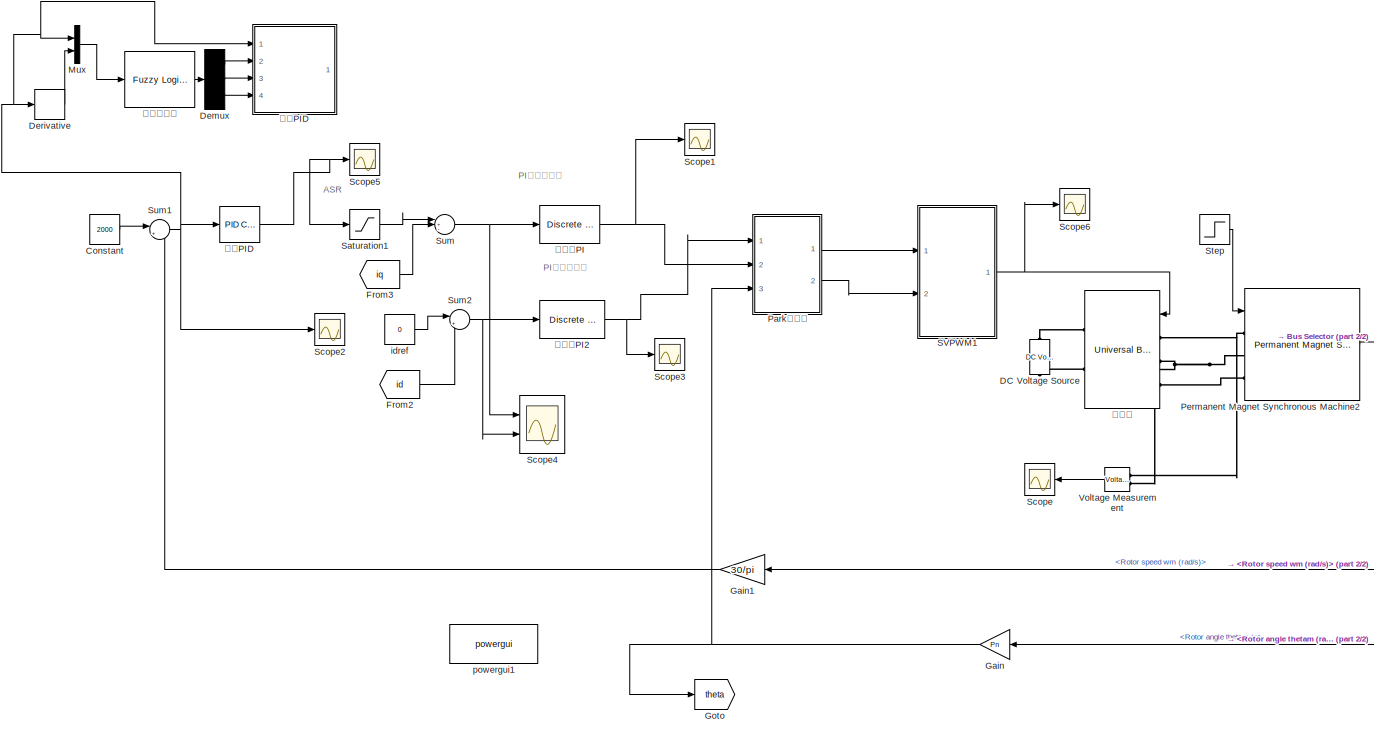
[diagram: root canvas - part 1/2, center side, full height]
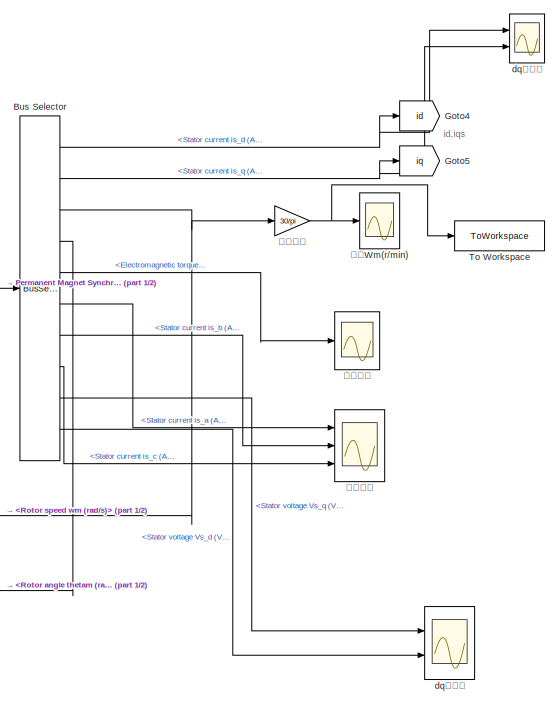
[diagram: root canvas - part 2/2, right side, full height]
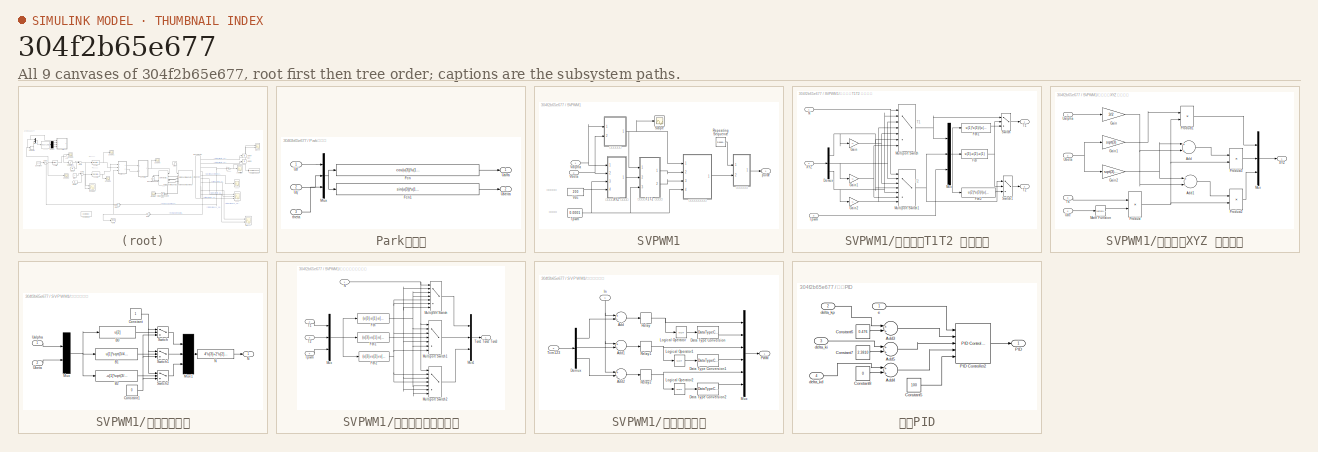
[diagram: thumbnail index - all 9 canvases of the model, root first then tree order]
MODEL slx_304f2b65e677
KIND model
CONFIG AbsTol = auto
CONFIG EnableMultiTasking = on
CONFIG FixedStep = 2e-5
CONFIG InitFcn = Ts = 2e-5\nPn = 4\n
CONFIG MaxStep = auto
CONFIG MinStep = auto
CONFIG RelTol = 1e-4
CONFIG SampleTimeConstraint = Unconstrained
CONFIG Solver = ode4
CONFIG SolverName = ode4
CONFIG StartTime = 0.0
CONFIG StopTime = 10
BLOCK [BusSelector] Bus Selector
  OutputAsBus = off
  OutputSignals = Stator current is_d (A),Stator current is_q (A),Rotor speed wm (rad/s),Rotor angle thetam (rad),Electromagnetic torque Te (N*m),Stator current is_a (A),Stator current is_b (A),Stator current is_c (A),Stator voltage Vs_q (V),Stator voltage Vs_d (V)
  Ports = [1, 10]
BLOCK [Constant] Constant
  Value = 2000
BLOCK [Reference] DC Voltage Source  REF=powerlib/Electrical
Sources/DC Voltage Source
  Ports = [0, 0, 0, 0, 0, 1, 1]
  SourceBlock = powerlib/Electrical\nSources/DC Voltage Source
  SourceProductBaseCode = PS
  SourceProductName = Simscape Electrical
  SourceType = DC Voltage Source
BLOCK [Demux] Demux
  Commented = on
  DisplayOption = bar
  Outputs = 3
  Ports = [1, 3]
BLOCK [Derivative] Derivative
  Commented = on
BLOCK [From] From2
  GotoTag = id
BLOCK [From] From3
  GotoTag = iq
BLOCK [Gain] Gain
  Gain = Pn
  OutDataTypeStr = Inherit: Inherit via internal rule
  ParamDataTypeStr = Inherit: Inherit via internal rule
  SaturateOnIntegerOverflow = off
BLOCK [Gain] Gain1
  Gain = 30/pi
  OutDataTypeStr = Inherit: Inherit via internal rule
  ParamDataTypeStr = Inherit: Inherit via internal rule
  SaturateOnIntegerOverflow = off
BLOCK [Goto] Goto
  GotoTag = theta
BLOCK [Goto] Goto4
  GotoTag = id
BLOCK [Goto] Goto5
  GotoTag = iq
BLOCK [Mux] Mux
  Commented = on
  DisplayOption = bar
  Inputs = 2
  Ports = [2, 1]
BLOCK [SubSystem] Park逆变换
  Ports = [3, 2]
  RequestExecContextInheritance = off
BLOCK [Fcn] Park逆变换/Fcn
  Expr = cos(u(3))*u(1)-sin(u(3))*u(2)
BLOCK [Fcn] Park逆变换/Fcn1
  Expr = sin(u(3))*u(1)+cos(u(3))*u(2)
BLOCK [Mux] Park逆变换/Mux
  DisplayOption = bar
  Inputs = 3
  Ports = [3, 1]
BLOCK [Outport] Park逆变换/Ualfa
  IconDisplay = Port number
BLOCK [Outport] Park逆变换/Ubeita
  IconDisplay = Port number
  Port = 2
BLOCK [Inport] Park逆变换/Ud'
  IconDisplay = Port number
BLOCK [Inport] Park逆变换/Uq'
  IconDisplay = Port number
  Port = 2
BLOCK [Inport] Park逆变换/theta
  IconDisplay = Port number
  Port = 3
BLOCK [Reference] Permanent Magnet Synchronous Machine2  REF=powerlib/Machines/Permanent Magnet
Synchronous Machine
  Ports = [1, 1, 0, 0, 0, 3]
  SourceBlock = powerlib/Machines/Permanent Magnet\nSynchronous Machine
  SourceProductBaseCode = PS
  SourceProductName = Simscape Electrical
  SourceType = Permanent Magnet Synchronous Machine
BLOCK [SubSystem] SVPWM1
  Ports = [2, 1]
  RequestExecContextInheritance = off
BLOCK [Reference] SVPWM1/Repeating Sequence  REF=simulink/Sources/Repeating
Sequence
  Ports = [0, 1]
  SourceBlock = simulink/Sources/Repeating\nSequence
  SourceProductBaseCode = SL
  SourceProductName = Simulink
  SourceType = Repeating table
BLOCK [Scope] SVPWM1/Scope
  Floating = off
  NumInputPorts = 1
  Ports = [1]
  ScopeSpecificationString = Simulink.scopes.TimeScopeBlockCfg('CurrentConfiguration', extmgr.ConfigurationSet(extmgr.Configuration('Core','General UI',true),extmgr.Configuration('Core','Source UI',true),extmgr.Configuration('Sources','WiredSimulink',true,'DataLoggingVariableName','ScopeData1'),extmgr.Configuration('Visuals','Time Domain',true,'SerializedDisplays',{struct('MinYLimReal','0.89105','MaxYLimReal','6.07711','YLabe...<+1434ch>
BLOCK [Constant] SVPWM1/Tpwm
  Value = 0.0001
BLOCK [Inport] SVPWM1/Valpha
  IconDisplay = Port number
BLOCK [Inport] SVPWM1/Vbeta
  IconDisplay = Port number
  Port = 2
BLOCK [Constant] SVPWM1/Vdc
  Value = 200
BLOCK [Outport] SVPWM1/pulse
  IconDisplay = Port number
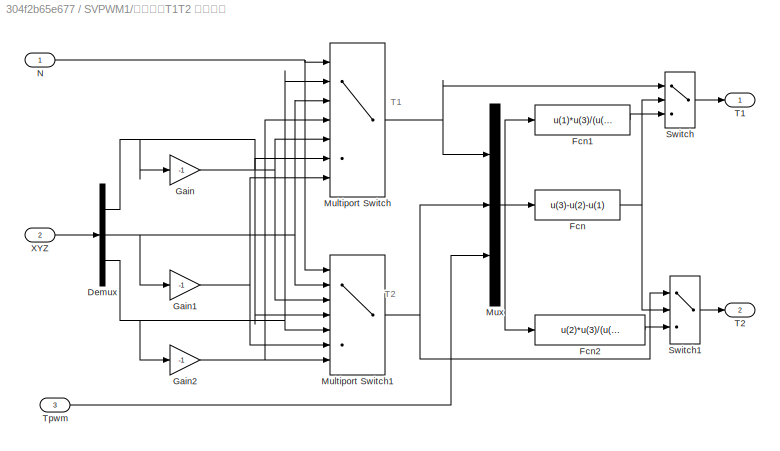
BLOCK [SubSystem] SVPWM1/不同扇区T1T2 计算模型
  Ports = [3, 2]
  RequestExecContextInheritance = off
BLOCK [Demux] SVPWM1/不同扇区T1T2 计算模型/Demux
  DisplayOption = bar
  Outputs = 3
  Ports = [1, 3]
BLOCK [Fcn] SVPWM1/不同扇区T1T2 计算模型/Fcn
  Expr = u(3)-u(2)-u(1)
BLOCK [Fcn] SVPWM1/不同扇区T1T2 计算模型/Fcn1
  Expr = u(1)*u(3)/(u(1)+u(2))
BLOCK [Fcn] SVPWM1/不同扇区T1T2 计算模型/Fcn2
  Expr = u(2)*u(3)/(u(1)+u(2))
BLOCK [Gain] SVPWM1/不同扇区T1T2 计算模型/Gain
  Gain = -1
  OutDataTypeStr = Inherit: Inherit via internal rule
  ParamDataTypeStr = Inherit: Inherit via internal rule
  SaturateOnIntegerOverflow = off
BLOCK [Gain] SVPWM1/不同扇区T1T2 计算模型/Gain1
  Gain = -1
  OutDataTypeStr = Inherit: Inherit via internal rule
  ParamDataTypeStr = Inherit: Inherit via internal rule
  SaturateOnIntegerOverflow = off
BLOCK [Gain] SVPWM1/不同扇区T1T2 计算模型/Gain2
  Gain = -1
  OutDataTypeStr = Inherit: Inherit via internal rule
  ParamDataTypeStr = Inherit: Inherit via internal rule
  SaturateOnIntegerOverflow = off
BLOCK [MultiPortSwitch] SVPWM1/不同扇区T1T2 计算模型/Multiport Switch
  DiagnosticForDefault = Warning
  InputSameDT = off
  Inputs = 6
  Ports = [7, 1]
  SaturateOnIntegerOverflow = off
BLOCK [MultiPortSwitch] SVPWM1/不同扇区T1T2 计算模型/Multiport Switch1
  DiagnosticForDefault = Warning
  InputSameDT = off
  Inputs = 6
  Ports = [7, 1]
  SaturateOnIntegerOverflow = off
BLOCK [Mux] SVPWM1/不同扇区T1T2 计算模型/Mux
  DisplayOption = bar
  Inputs = 3
  Ports = [3, 1]
BLOCK [Inport] SVPWM1/不同扇区T1T2 计算模型/N
  IconDisplay = Port number
BLOCK [Switch] SVPWM1/不同扇区T1T2 计算模型/Switch
  InputSameDT = off
  SaturateOnIntegerOverflow = off
BLOCK [Switch] SVPWM1/不同扇区T1T2 计算模型/Switch1
  Criteria = u2 > Threshold
  InputSameDT = off
  SaturateOnIntegerOverflow = off
BLOCK [Outport] SVPWM1/不同扇区T1T2 计算模型/T1
  IconDisplay = Port number
BLOCK [Outport] SVPWM1/不同扇区T1T2 计算模型/T2
  IconDisplay = Port number
  Port = 2
BLOCK [Inport] SVPWM1/不同扇区T1T2 计算模型/Tpwm
  IconDisplay = Port number
  Port = 3
BLOCK [Inport] SVPWM1/不同扇区T1T2 计算模型/XYZ
  IconDisplay = Port number
  Port = 2
BLOCK [SubSystem] SVPWM1/不同扇区XYZ 计算模型
  Ports = [4, 1]
  RequestExecContextInheritance = off
BLOCK [Sum] SVPWM1/不同扇区XYZ 计算模型/Add
  InputSameDT = off
  OutDataTypeStr = Inherit: Inherit via internal rule
  Ports = [2, 1]
  SaturateOnIntegerOverflow = off
BLOCK [Sum] SVPWM1/不同扇区XYZ 计算模型/Add1
  InputSameDT = off
  Inputs = +-
  OutDataTypeStr = Inherit: Inherit via internal rule
  Ports = [2, 1]
  SaturateOnIntegerOverflow = off
BLOCK [Gain] SVPWM1/不同扇区XYZ 计算模型/Gain
  Gain = 3/2
  OutDataTypeStr = Inherit: Inherit via internal rule
  ParamDataTypeStr = Inherit: Inherit via internal rule
  SaturateOnIntegerOverflow = off
BLOCK [Gain] SVPWM1/不同扇区XYZ 计算模型/Gain1
  Gain = sqrt(3)
  OutDataTypeStr = Inherit: Inherit via internal rule
  ParamDataTypeStr = Inherit: Inherit via internal rule
  SaturateOnIntegerOverflow = off
BLOCK [Gain] SVPWM1/不同扇区XYZ 计算模型/Gain2
  Gain = sqrt(3)/2
  OutDataTypeStr = Inherit: Inherit via internal rule
  ParamDataTypeStr = Inherit: Inherit via internal rule
  SaturateOnIntegerOverflow = off
BLOCK [Math] SVPWM1/不同扇区XYZ 计算模型/Math Function
  Operator = reciprocal
  Ports = [1, 1]
BLOCK [Mux] SVPWM1/不同扇区XYZ 计算模型/Mux
  DisplayOption = bar
  Inputs = 3
  Ports = [3, 1]
BLOCK [Product] SVPWM1/不同扇区XYZ 计算模型/Product
  InputSameDT = off
  OutDataTypeStr = Inherit: Inherit via internal rule
  Ports = [2, 1]
  SaturateOnIntegerOverflow = off
BLOCK [Product] SVPWM1/不同扇区XYZ 计算模型/Product1
  InputSameDT = off
  OutDataTypeStr = Inherit: Inherit via internal rule
  Ports = [2, 1]
  SaturateOnIntegerOverflow = off
BLOCK [Product] SVPWM1/不同扇区XYZ 计算模型/Product2
  InputSameDT = off
  OutDataTypeStr = Inherit: Inherit via internal rule
  Ports = [2, 1]
  SaturateOnIntegerOverflow = off
BLOCK [Product] SVPWM1/不同扇区XYZ 计算模型/Product3
  InputSameDT = off
  OutDataTypeStr = Inherit: Inherit via internal rule
  Ports = [2, 1]
  SaturateOnIntegerOverflow = off
BLOCK [Inport] SVPWM1/不同扇区XYZ 计算模型/Ts
  IconDisplay = Port number
  Port = 3
BLOCK [Inport] SVPWM1/不同扇区XYZ 计算模型/Ualpha
  IconDisplay = Port number
BLOCK [Inport] SVPWM1/不同扇区XYZ 计算模型/Ubeta
  IconDisplay = Port number
  Port = 2
BLOCK [Inport] SVPWM1/不同扇区XYZ 计算模型/Udc
  IconDisplay = Port number
  Port = 4
BLOCK [Outport] SVPWM1/不同扇区XYZ 计算模型/XYZ
  IconDisplay = Port number
BLOCK [SubSystem] SVPWM1/扇区计算模型
  Ports = [2, 1]
  RequestExecContextInheritance = off
BLOCK [Fcn] SVPWM1/扇区计算模型/B0
  Expr = u[2]
BLOCK [Fcn] SVPWM1/扇区计算模型/B1
  Expr = u[1]*sqrt(3/4)-0.5*u[2]
BLOCK [Fcn] SVPWM1/扇区计算模型/B2
  Expr = -u[1]*sqrt(3/4)-u[2]*0.5
BLOCK [Constant] SVPWM1/扇区计算模型/Constant
BLOCK [Constant] SVPWM1/扇区计算模型/Constant1
  Value = 0
BLOCK [Mux] SVPWM1/扇区计算模型/Mux
  Inputs = 2
  Ports = [2, 1]
BLOCK [Mux] SVPWM1/扇区计算模型/Mux1
  Inputs = 3
  Ports = [3, 1]
BLOCK [Fcn] SVPWM1/扇区计算模型/N
  Expr = 4*u[3]+2*u[2]+u[1]
BLOCK [Outport] SVPWM1/扇区计算模型/N 
  IconDisplay = Port number
BLOCK [Switch] SVPWM1/扇区计算模型/Switch
  InputSameDT = off
  SaturateOnIntegerOverflow = off
BLOCK [Switch] SVPWM1/扇区计算模型/Switch1
  InputSameDT = off
  SaturateOnIntegerOverflow = off
BLOCK [Switch] SVPWM1/扇区计算模型/Switch2
  InputSameDT = off
  SaturateOnIntegerOverflow = off
BLOCK [Inport] SVPWM1/扇区计算模型/Ualpha
  IconDisplay = Port number
BLOCK [Inport] SVPWM1/扇区计算模型/Ubeta
  IconDisplay = Port number
  Port = 2
BLOCK [SubSystem] SVPWM1/空间电压矢量切换点
  Ports = [4, 1]
  RequestExecContextInheritance = off
BLOCK [Fcn] SVPWM1/空间电压矢量切换点/Fcn
  Expr = (u[3]-u[1]-u[2])/4
BLOCK [Fcn] SVPWM1/空间电压矢量切换点/Fcn1
  Expr = (u[3]+u[1]-u[2])/4
BLOCK [Fcn] SVPWM1/空间电压矢量切换点/Fcn2
  Expr = (u[3]+u[2]+u[1])/4
BLOCK [MultiPortSwitch] SVPWM1/空间电压矢量切换点/Multiport Switch
  DiagnosticForDefault = Warning
  InputSameDT = off
  Inputs = 6
  Ports = [7, 1]
  SaturateOnIntegerOverflow = off
BLOCK [MultiPortSwitch] SVPWM1/空间电压矢量切换点/Multiport Switch1
  DiagnosticForDefault = Warning
  InputSameDT = off
  Inputs = 6
  Ports = [7, 1]
  SaturateOnIntegerOverflow = off
BLOCK [MultiPortSwitch] SVPWM1/空间电压矢量切换点/Multiport Switch2
  DiagnosticForDefault = Warning
  InputSameDT = off
  Inputs = 6
  Ports = [7, 1]
  SaturateOnIntegerOverflow = off
BLOCK [Mux] SVPWM1/空间电压矢量切换点/Mux
  DisplayOption = bar
  Inputs = 3
  Ports = [3, 1]
BLOCK [Mux] SVPWM1/空间电压矢量切换点/Mux1
  DisplayOption = bar
  Inputs = 3
  Ports = [3, 1]
BLOCK [Inport] SVPWM1/空间电压矢量切换点/N
  IconDisplay = Port number
BLOCK [Inport] SVPWM1/空间电压矢量切换点/T1
  IconDisplay = Port number
  Port = 2
BLOCK [Inport] SVPWM1/空间电压矢量切换点/T2
  IconDisplay = Port number
  Port = 3
BLOCK [Outport] SVPWM1/空间电压矢量切换点/Tcm1 Tcm2 Tcm3
  IconDisplay = Port number
BLOCK [Inport] SVPWM1/空间电压矢量切换点/Tpwm
  IconDisplay = Port number
  Port = 4
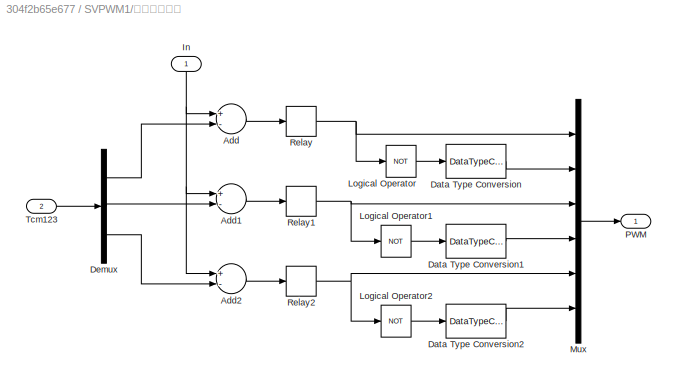
BLOCK [SubSystem] SVPWM1/脉冲输出模型
  Ports = [2, 1]
  RequestExecContextInheritance = off
BLOCK [Sum] SVPWM1/脉冲输出模型/Add
  InputSameDT = off
  Inputs = +-
  OutDataTypeStr = Inherit: Inherit via internal rule
  Ports = [2, 1]
  SaturateOnIntegerOverflow = off
BLOCK [Sum] SVPWM1/脉冲输出模型/Add1
  InputSameDT = off
  Inputs = +-
  OutDataTypeStr = Inherit: Inherit via internal rule
  Ports = [2, 1]
  SaturateOnIntegerOverflow = off
BLOCK [Sum] SVPWM1/脉冲输出模型/Add2
  InputSameDT = off
  Inputs = +-
  OutDataTypeStr = Inherit: Inherit via internal rule
  Ports = [2, 1]
  SaturateOnIntegerOverflow = off
BLOCK [DataTypeConversion] SVPWM1/脉冲输出模型/Data Type Conversion
  OutDataTypeStr = double
  RndMeth = Floor
  SaturateOnIntegerOverflow = off
BLOCK [DataTypeConversion] SVPWM1/脉冲输出模型/Data Type Conversion1
  OutDataTypeStr = double
  RndMeth = Floor
  SaturateOnIntegerOverflow = off
BLOCK [DataTypeConversion] SVPWM1/脉冲输出模型/Data Type Conversion2
  OutDataTypeStr = double
  RndMeth = Floor
  SaturateOnIntegerOverflow = off
BLOCK [Demux] SVPWM1/脉冲输出模型/Demux
  DisplayOption = bar
  Outputs = 3
  Ports = [1, 3]
BLOCK [Inport] SVPWM1/脉冲输出模型/In
  IconDisplay = Port number
BLOCK [Logic] SVPWM1/脉冲输出模型/Logical Operator
  AllPortsSameDT = off
  Operator = NOT
  OutDataTypeStr = boolean
  Ports = [1, 1]
BLOCK [Logic] SVPWM1/脉冲输出模型/Logical Operator1
  AllPortsSameDT = off
  Operator = NOT
  OutDataTypeStr = boolean
  Ports = [1, 1]
BLOCK [Logic] SVPWM1/脉冲输出模型/Logical Operator2
  AllPortsSameDT = off
  Operator = NOT
  OutDataTypeStr = boolean
  Ports = [1, 1]
BLOCK [Mux] SVPWM1/脉冲输出模型/Mux
  DisplayOption = bar
  Inputs = 6
  Ports = [6, 1]
BLOCK [Outport] SVPWM1/脉冲输出模型/PWM
  IconDisplay = Port number
BLOCK [Relay] SVPWM1/脉冲输出模型/Relay
  OffSwitchValue = -eps
BLOCK [Relay] SVPWM1/脉冲输出模型/Relay1
  OffSwitchValue = -eps
BLOCK [Relay] SVPWM1/脉冲输出模型/Relay2
  OffSwitchValue = -eps
BLOCK [Inport] SVPWM1/脉冲输出模型/Tcm123
  IconDisplay = Port number
  Port = 2
BLOCK [Saturate] Saturation1
  InputPortMap = u0
  LowerLimit = -50
  Ports = [1, 1]
  UpperLimit = 50
BLOCK [Scope] Scope
  Floating = off
  NumInputPorts = 1
  Ports = [1]
  ScopeSpecificationString = Simulink.scopes.TimeScopeBlockCfg('CurrentConfiguration', extmgr.ConfigurationSet(extmgr.Configuration('Core','General UI',true),extmgr.Configuration('Core','Source UI',true),extmgr.Configuration('Sources','WiredSimulink',true,'DataLoggingSaveFormat','Array','DataLoggingDecimation','1','DataLoggingDecimateData',true),extmgr.Configuration('Visuals','Time Domain',true,'SerializedDisplays',{struct('M...<+1513ch>
BLOCK [Scope] Scope1
  Floating = off
  NumInputPorts = 1
  Ports = [1]
  ScopeSpecificationString = Simulink.scopes.TimeScopeBlockCfg('CurrentConfiguration', extmgr.ConfigurationSet(extmgr.Configuration('Core','General UI',true),extmgr.Configuration('Core','Source UI',true),extmgr.Configuration('Sources','WiredSimulink',true,'DataLoggingVariableName','ScopeData1'),extmgr.Configuration('Visuals','Time Domain',true,'SerializedDisplays',{struct('MinYLimReal','10000.00000','MaxYLimReal','30000.00000...<+1447ch>
BLOCK [Scope] Scope2
  Floating = off
  NumInputPorts = 1
  Ports = [1]
  ScopeSpecificationString = Simulink.scopes.TimeScopeBlockCfg('CurrentConfiguration', extmgr.ConfigurationSet(extmgr.Configuration('Core','General UI',true),extmgr.Configuration('Core','Source UI',true),extmgr.Configuration('Sources','WiredSimulink',true,'DataLoggingVariableName','ScopeData1'),extmgr.Configuration('Visuals','Time Domain',true,'SerializedDisplays',{struct('MinYLimReal','-231.70022','MaxYLimReal','1136.85558',...<+1381ch>
BLOCK [Scope] Scope3
  Floating = off
  NumInputPorts = 1
  Ports = [1]
  ScopeSpecificationString = Simulink.scopes.TimeScopeBlockCfg('CurrentConfiguration', extmgr.ConfigurationSet(extmgr.Configuration('Core','General UI',true),extmgr.Configuration('Core','Source UI',true),extmgr.Configuration('Sources','WiredSimulink',true,'DataLoggingVariableName','ScopeData2'),extmgr.Configuration('Visuals','Time Domain',true),extmgr.Configuration('Tools','Plot Navigation',true),extmgr.Configuration('Tools',...<+40ch>
BLOCK [Scope] Scope4
  Floating = off
  NumInputPorts = 2
  Ports = [2]
  ScopeSpecificationString = Simulink.scopes.TimeScopeBlockCfg('CurrentConfiguration', extmgr.ConfigurationSet(extmgr.Configuration('Core','General UI',true,'FigureColor',[1 1 1]),extmgr.Configuration('Core','Source UI',true),extmgr.Configuration('Sources','WiredSimulink',true,'DataLoggingVariableName','ScopeData4'),extmgr.Configuration('Visuals','Time Domain',true,'SerializedDisplays',{struct('MinYLimReal','-10.08265','MaxYL...<+2230ch>
BLOCK [Scope] Scope5
  Floating = off
  NumInputPorts = 1
  Ports = [1]
  ScopeSpecificationString = Simulink.scopes.TimeScopeBlockCfg('CurrentConfiguration', extmgr.ConfigurationSet(extmgr.Configuration('Core','General UI',true),extmgr.Configuration('Core','Source UI',true),extmgr.Configuration('Sources','WiredSimulink',true,'DataLoggingVariableName','ScopeData3'),extmgr.Configuration('Visuals','Time Domain',true,'SerializedDisplays',{struct('MinYLimReal','-789.73279','MaxYLimReal','17256.66639'...<+1386ch>
BLOCK [Scope] Scope6
  Floating = off
  NumInputPorts = 1
  Ports = [1]
  ScopeSpecificationString = Simulink.scopes.TimeScopeBlockCfg('CurrentConfiguration', extmgr.ConfigurationSet(extmgr.Configuration('Core','General UI',true),extmgr.Configuration('Core','Source UI',true),extmgr.Configuration('Sources','WiredSimulink',true,'DataLoggingVariableName','ScopeData4'),extmgr.Configuration('Visuals','Time Domain',true,'SerializedDisplays',{struct('MinYLimReal','-0.125','MaxYLimReal','1.125','YLabelRe...<+1484ch>
BLOCK [Step] Step
  After = 10
  Before = 5
  SampleTime = 0
  Time = 2
BLOCK [Sum] Sum
  IconShape = round
  InputSameDT = off
  Inputs = |+-+
  OutDataTypeStr = Inherit: Inherit via internal rule
  Ports = [3, 1]
  SaturateOnIntegerOverflow = off
BLOCK [Sum] Sum1
  IconShape = round
  InputSameDT = off
  Inputs = |+-
  OutDataTypeStr = Inherit: Inherit via internal rule
  Ports = [2, 1]
  SaturateOnIntegerOverflow = off
BLOCK [Sum] Sum2
  IconShape = round
  InputSameDT = off
  Inputs = |+-
  OutDataTypeStr = Inherit: Inherit via internal rule
  Ports = [2, 1]
  SaturateOnIntegerOverflow = off
BLOCK [ToWorkspace] To Workspace
  FixptAsFi = on
  MaxDataPoints = inf
  Ports = [1]
  SampleTime = -1
  SaveFormat = Timeseries
  VariableName = Wm2
BLOCK [Reference] Voltage Measurement  REF=powerlib/Measurements/Voltage Measurement
  Ports = [0, 1, 0, 0, 0, 2]
  SourceBlock = powerlib/Measurements/Voltage Measurement
  SourceProductBaseCode = PS
  SourceProductName = Simscape Electrical
  SourceType = Voltage Measurement
  UserDataPersistent = on
BLOCK [Scope] dq轴电压
  Floating = off
  NumInputPorts = 2
  Ports = [2]
  ScopeSpecificationString = Simulink.scopes.TimeScopeBlockCfg('CurrentConfiguration', extmgr.ConfigurationSet(extmgr.Configuration('Core','General UI',true,'FigureColor',[1 1 1]),extmgr.Configuration('Core','Source UI',true),extmgr.Configuration('Sources','WiredSimulink',true,'DataLoggingVariableName','ScopeData1'),extmgr.Configuration('Visuals','Time Domain',true,'SerializedDisplays',{struct('MinYLimReal','-165.49634','MaxY...<+2213ch>
BLOCK [Scope] dq轴电流
  Floating = off
  NumInputPorts = 2
  Ports = [2]
  ScopeSpecificationString = Simulink.scopes.TimeScopeBlockCfg('CurrentConfiguration', extmgr.ConfigurationSet(extmgr.Configuration('Core','General UI',true),extmgr.Configuration('Core','Source UI',true),extmgr.Configuration('Sources','WiredSimulink',true,'DataLoggingVariableName','ScopeData4'),extmgr.Configuration('Visuals','Time Domain',true,'SerializedDisplays',{struct('MinYLimReal','-52.34756','MaxYLimReal','70.70365','YL...<+1492ch>
BLOCK [Constant] idref
  Value = 0
BLOCK [Reference] powergui1  REF=powerlib/powergui
  Ports = []
  SourceBlock = powerlib/powergui
  SourceProductBaseCode = PS
  SourceProductName = Simscape Electrical
  SourceType = PSB option menu block
BLOCK [Scope] 三相电流
  Floating = off
  NumInputPorts = 3
  Ports = [3]
  ScopeSpecificationString = Simulink.scopes.TimeScopeBlockCfg('CurrentConfiguration', extmgr.ConfigurationSet(extmgr.Configuration('Core','General UI',true),extmgr.Configuration('Core','Source UI',true),extmgr.Configuration('Sources','WiredSimulink',true,'DataLoggingVariableName','ScopeData3'),extmgr.Configuration('Visuals','Time Domain',true,'SerializedDisplays',{struct('MinYLimReal','-1.57498','MaxYLimReal','1.58449','YLab...<+1495ch>
BLOCK [SubSystem] 模糊PID
  Commented = on
  Ports = [4, 1]
  RequestExecContextInheritance = off
BLOCK [Sum] 模糊PID/Add3
  InputSameDT = off
  OutDataTypeStr = Inherit: Inherit via internal rule
  Ports = [2, 1]
  SaturateOnIntegerOverflow = off
BLOCK [Sum] 模糊PID/Add4
  InputSameDT = off
  OutDataTypeStr = Inherit: Inherit via internal rule
  Ports = [2, 1]
  SaturateOnIntegerOverflow = off
BLOCK [Sum] 模糊PID/Add5
  InputSameDT = off
  OutDataTypeStr = Inherit: Inherit via internal rule
  Ports = [2, 1]
  SaturateOnIntegerOverflow = off
BLOCK [Constant] 模糊PID/Constant5
  Value = 100
BLOCK [Constant] 模糊PID/Constant6
  Value = 0.476
BLOCK [Constant] 模糊PID/Constant7
  Value = 2.3810
BLOCK [Constant] 模糊PID/Constant8
  Value = 0
BLOCK [Outport] 模糊PID/PID
  IconDisplay = Port number
BLOCK [Reference] 模糊PID/PID Controller2  REF=simulink/Continuous/PID Controller
  Ports = [5, 1]
  SourceBlock = simulink/Continuous/PID Controller
  SourceProductBaseCode = SL
  SourceProductName = Simulink
  SourceType = PID 1dof
BLOCK [Inport] 模糊PID/delta_kd
  IconDisplay = Port number
  Port = 4
BLOCK [Inport] 模糊PID/delta_ki
  IconDisplay = Port number
  Port = 3
BLOCK [Inport] 模糊PID/delta_kp
  IconDisplay = Port number
  Port = 2
BLOCK [Inport] 模糊PID/e
  IconDisplay = Port number
BLOCK [Reference] 模糊控制器  REF=fuzblock/Fuzzy Logic   (lib defined in mdl_858b3b3e7478)
Controller
  Commented = on
  Ports = [1, 1]
  SourceBlock = fuzblock/Fuzzy Logic \nController
  SourceProductBaseCode = FL
  SourceProductName = Fuzzy Logic Toolbox
  SourceType = Fuzzy Inference System
BLOCK [Gain] 电机转速
  Gain = 30/pi
  OutDataTypeStr = Inherit: Inherit via internal rule
  ParamDataTypeStr = Inherit: Inherit via internal rule
  SaturateOnIntegerOverflow = off
BLOCK [Reference] 电流环PI  REF=powerlib_extras/Discrete 
Control Blocks/Discrete
PI Controller
  Ports = [1, 1]
  SourceBlock = powerlib_extras/Discrete \nControl Blocks/Discrete\nPI Controller
  SourceProductBaseCode = PS
  SourceProductName = Simscape Electrical
  SourceType = Discrete PI Controller
BLOCK [Reference] 电流环PI2  REF=powerlib_extras/Discrete 
Control Blocks/Discrete
PI Controller
  Ports = [1, 1]
  SourceBlock = powerlib_extras/Discrete \nControl Blocks/Discrete\nPI Controller
  SourceProductBaseCode = PS
  SourceProductName = Simscape Electrical
  SourceType = Discrete PI Controller
BLOCK [Scope] 电磁转矩
  Floating = off
  NumInputPorts = 1
  Ports = [1]
  ScopeSpecificationString = Simulink.scopes.TimeScopeBlockCfg('CurrentConfiguration', extmgr.ConfigurationSet(extmgr.Configuration('Core','General UI',true,'FigureColor',[1 1 1]),extmgr.Configuration('Core','Source UI',true),extmgr.Configuration('Sources','WiredSimulink',true,'DataLoggingVariableName','ScopeData5'),extmgr.Configuration('Visuals','Time Domain',true,'SerializedDisplays',{struct('MinYLimReal','-1797693134862315...<+4195ch>
BLOCK [Reference] 转速PID  REF=simulink/Continuous/PID Controller
  Ports = [1, 1]
  SourceBlock = simulink/Continuous/PID Controller
  SourceProductBaseCode = SL
  SourceProductName = Simulink
  SourceType = PID 1dof
BLOCK [Scope] 转速Wm(r//min)
  Floating = off
  NumInputPorts = 1
  Ports = [1]
  ScopeSpecificationString = Simulink.scopes.TimeScopeBlockCfg('CurrentConfiguration', extmgr.ConfigurationSet(extmgr.Configuration('Core','General UI',true,'FigureColor',[1 1 1]),extmgr.Configuration('Core','Source UI',true),extmgr.Configuration('Sources','WiredSimulink',true,'DataLoggingVariableName','ScopeData1'),extmgr.Configuration('Visuals','Time Domain',true,'SerializedDisplays',{struct('MinYLimReal','-254.05843','MaxY...<+1721ch>
BLOCK [Reference] 逆变器  REF=powerlib/Power
Electronics/Universal Bridge
  Ports = [1, 0, 0, 0, 0, 3, 2]
  SourceBlock = powerlib/Power\nElectronics/Universal Bridge
  SourceProductBaseCode = PS
  SourceProductName = Simscape Electrical
  SourceType = Universal Bridge
ANNOTATION (root): PI电流调节器
ANNOTATION (root): id,iqs
ANNOTATION (root): ASR
ANNOTATION SVPWM1: 直流侧电压
ANNOTATION SVPWM1: 采样时间
ANNOTATION SVPWM1/不同扇区T1T2 计算模型: T1
ANNOTATION SVPWM1/不同扇区T1T2 计算模型: T2
NET Bus Selector:1 -> Goto4:1, dq轴电流:1
LINE Bus Selector:10 -> dq轴电压:2
NET Bus Selector:2 -> Goto5:1, dq轴电流:2
NET Bus Selector:3 -> Gain1:1, 电机转速:1
LINE Bus Selector:4 -> Gain:1
LINE Bus Selector:5 -> 电磁转矩:1
LINE Bus Selector:6 -> 三相电流:1
LINE Bus Selector:7 -> 三相电流:2
LINE Bus Selector:8 -> 三相电流:3
LINE Bus Selector:9 -> dq轴电压:1
LINE Constant:1 -> Sum1:1
LINE Demux:1 -> 模糊PID:2
LINE Demux:2 -> 模糊PID:3
LINE Demux:3 -> 模糊PID:4
LINE Derivative:1 -> Mux:2
LINE From2:1 -> Sum2:2
LINE From3:1 -> Sum:2
LINE Gain1:1 -> Sum1:2
NET Gain:1 -> Goto:1, Park逆变换:3
LINE Mux:1 -> 模糊控制器:1
LINE Park逆变换/Fcn1:1 -> Park逆变换/Ubeita:1
LINE Park逆变换/Fcn:1 -> Park逆变换/Ualfa:1
NET Park逆变换/Mux:1 -> Park逆变换/Fcn1:1, Park逆变换/Fcn:1
LINE Park逆变换/Ud':1 -> Park逆变换/Mux:1
LINE Park逆变换/Uq':1 -> Park逆变换/Mux:2
LINE Park逆变换/theta:1 -> Park逆变换/Mux:3
LINE Park逆变换:1 -> SVPWM1:1
LINE Park逆变换:2 -> SVPWM1:2
LINE Permanent Magnet Synchronous Machine2:1 -> Bus Selector:1
LINE SVPWM1/Repeating Sequence:1 -> SVPWM1/脉冲输出模型:1
NET SVPWM1/Tpwm:1 -> SVPWM1/不同扇区T1T2 计算模型:3, SVPWM1/不同扇区XYZ 计算模型:3, SVPWM1/空间电压矢量切换点:4
NET SVPWM1/Valpha:1 -> SVPWM1/不同扇区XYZ 计算模型:1, SVPWM1/扇区计算模型:1
NET SVPWM1/Vbeta:1 -> SVPWM1/不同扇区XYZ 计算模型:2, SVPWM1/扇区计算模型:2
LINE SVPWM1/Vdc:1 -> SVPWM1/不同扇区XYZ 计算模型:4
NET SVPWM1/不同扇区T1T2 计算模型/Demux:1 -> SVPWM1/不同扇区T1T2 计算模型/Gain:1, SVPWM1/不同扇区T1T2 计算模型/Multiport Switch1:4, SVPWM1/不同扇区T1T2 计算模型/Multiport Switch:6
NET SVPWM1/不同扇区T1T2 计算模型/Demux:2 -> SVPWM1/不同扇区T1T2 计算模型/Gain1:1, SVPWM1/不同扇区T1T2 计算模型/Multiport Switch1:2, SVPWM1/不同扇区T1T2 计算模型/Multiport Switch:3
NET SVPWM1/不同扇区T1T2 计算模型/Demux:3 -> SVPWM1/不同扇区T1T2 计算模型/Gain2:1, SVPWM1/不同扇区T1T2 计算模型/Multiport Switch1:5, SVPWM1/不同扇区T1T2 计算模型/Multiport Switch:2
LINE SVPWM1/不同扇区T1T2 计算模型/Fcn1:1 -> SVPWM1/不同扇区T1T2 计算模型/Switch:3
LINE SVPWM1/不同扇区T1T2 计算模型/Fcn2:1 -> SVPWM1/不同扇区T1T2 计算模型/Switch1:3
NET SVPWM1/不同扇区T1T2 计算模型/Fcn:1 -> SVPWM1/不同扇区T1T2 计算模型/Switch1:2, SVPWM1/不同扇区T1T2 计算模型/Switch:2
NET SVPWM1/不同扇区T1T2 计算模型/Gain1:1 -> SVPWM1/不同扇区T1T2 计算模型/Multiport Switch1:6, SVPWM1/不同扇区T1T2 计算模型/Multiport Switch:7
NET SVPWM1/不同扇区T1T2 计算模型/Gain2:1 -> SVPWM1/不同扇区T1T2 计算模型/Multiport Switch1:7, SVPWM1/不同扇区T1T2 计算模型/Multiport Switch:4
NET SVPWM1/不同扇区T1T2 计算模型/Gain:1 -> SVPWM1/不同扇区T1T2 计算模型/Multiport Switch1:3, SVPWM1/不同扇区T1T2 计算模型/Multiport Switch:5
NET SVPWM1/不同扇区T1T2 计算模型/Multiport Switch1:1 -> SVPWM1/不同扇区T1T2 计算模型/Mux:2, SVPWM1/不同扇区T1T2 计算模型/Switch1:1
NET SVPWM1/不同扇区T1T2 计算模型/Multiport Switch:1 -> SVPWM1/不同扇区T1T2 计算模型/Mux:1, SVPWM1/不同扇区T1T2 计算模型/Switch:1
NET SVPWM1/不同扇区T1T2 计算模型/Mux:1 -> SVPWM1/不同扇区T1T2 计算模型/Fcn1:1, SVPWM1/不同扇区T1T2 计算模型/Fcn2:1, SVPWM1/不同扇区T1T2 计算模型/Fcn:1
NET SVPWM1/不同扇区T1T2 计算模型/N:1 -> SVPWM1/不同扇区T1T2 计算模型/Multiport Switch1:1, SVPWM1/不同扇区T1T2 计算模型/Multiport Switch:1
LINE SVPWM1/不同扇区T1T2 计算模型/Switch1:1 -> SVPWM1/不同扇区T1T2 计算模型/T2:1
LINE SVPWM1/不同扇区T1T2 计算模型/Switch:1 -> SVPWM1/不同扇区T1T2 计算模型/T1:1
LINE SVPWM1/不同扇区T1T2 计算模型/Tpwm:1 -> SVPWM1/不同扇区T1T2 计算模型/Mux:3
LINE SVPWM1/不同扇区T1T2 计算模型/XYZ:1 -> SVPWM1/不同扇区T1T2 计算模型/Demux:1
LINE SVPWM1/不同扇区T1T2 计算模型:1 -> SVPWM1/空间电压矢量切换点:2
LINE SVPWM1/不同扇区T1T2 计算模型:2 -> SVPWM1/空间电压矢量切换点:3
LINE SVPWM1/不同扇区XYZ 计算模型/Add1:1 -> SVPWM1/不同扇区XYZ 计算模型/Product2:1
LINE SVPWM1/不同扇区XYZ 计算模型/Add:1 -> SVPWM1/不同扇区XYZ 计算模型/Product3:1
LINE SVPWM1/不同扇区XYZ 计算模型/Gain1:1 -> SVPWM1/不同扇区XYZ 计算模型/Product1:1
NET SVPWM1/不同扇区XYZ 计算模型/Gain2:1 -> SVPWM1/不同扇区XYZ 计算模型/Add1:1, SVPWM1/不同扇区XYZ 计算模型/Add:1
NET SVPWM1/不同扇区XYZ 计算模型/Gain:1 -> SVPWM1/不同扇区XYZ 计算模型/Add1:2, SVPWM1/不同扇区XYZ 计算模型/Add:2
LINE SVPWM1/不同扇区XYZ 计算模型/Math Function:1 -> SVPWM1/不同扇区XYZ 计算模型/Product:2
LINE SVPWM1/不同扇区XYZ 计算模型/Mux:1 -> SVPWM1/不同扇区XYZ 计算模型/XYZ:1
LINE SVPWM1/不同扇区XYZ 计算模型/Product1:1 -> SVPWM1/不同扇区XYZ 计算模型/Mux:1
LINE SVPWM1/不同扇区XYZ 计算模型/Product2:1 -> SVPWM1/不同扇区XYZ 计算模型/Mux:3
LINE SVPWM1/不同扇区XYZ 计算模型/Product3:1 -> SVPWM1/不同扇区XYZ 计算模型/Mux:2
NET SVPWM1/不同扇区XYZ 计算模型/Product:1 -> SVPWM1/不同扇区XYZ 计算模型/Product1:2, SVPWM1/不同扇区XYZ 计算模型/Product2:2, SVPWM1/不同扇区XYZ 计算模型/Product3:2
LINE SVPWM1/不同扇区XYZ 计算模型/Ts:1 -> SVPWM1/不同扇区XYZ 计算模型/Product:1
LINE SVPWM1/不同扇区XYZ 计算模型/Ualpha:1 -> SVPWM1/不同扇区XYZ 计算模型/Gain:1
NET SVPWM1/不同扇区XYZ 计算模型/Ubeta:1 -> SVPWM1/不同扇区XYZ 计算模型/Gain1:1, SVPWM1/不同扇区XYZ 计算模型/Gain2:1
LINE SVPWM1/不同扇区XYZ 计算模型/Udc:1 -> SVPWM1/不同扇区XYZ 计算模型/Math Function:1
LINE SVPWM1/不同扇区XYZ 计算模型:1 -> SVPWM1/不同扇区T1T2 计算模型:2
LINE SVPWM1/扇区计算模型/B0:1 -> SVPWM1/扇区计算模型/Switch:2
LINE SVPWM1/扇区计算模型/B1:1 -> SVPWM1/扇区计算模型/Switch1:2
LINE SVPWM1/扇区计算模型/B2:1 -> SVPWM1/扇区计算模型/Switch2:2
NET SVPWM1/扇区计算模型/Constant1:1 -> SVPWM1/扇区计算模型/Switch1:3, SVPWM1/扇区计算模型/Switch2:3, SVPWM1/扇区计算模型/Switch:3
NET SVPWM1/扇区计算模型/Constant:1 -> SVPWM1/扇区计算模型/Switch1:1, SVPWM1/扇区计算模型/Switch2:1, SVPWM1/扇区计算模型/Switch:1
LINE SVPWM1/扇区计算模型/Mux1:1 -> SVPWM1/扇区计算模型/N:1
NET SVPWM1/扇区计算模型/Mux:1 -> SVPWM1/扇区计算模型/B0:1, SVPWM1/扇区计算模型/B1:1, SVPWM1/扇区计算模型/B2:1
LINE SVPWM1/扇区计算模型/N:1 -> SVPWM1/扇区计算模型/N :1
LINE SVPWM1/扇区计算模型/Switch1:1 -> SVPWM1/扇区计算模型/Mux1:2
LINE SVPWM1/扇区计算模型/Switch2:1 -> SVPWM1/扇区计算模型/Mux1:3
LINE SVPWM1/扇区计算模型/Switch:1 -> SVPWM1/扇区计算模型/Mux1:1
LINE SVPWM1/扇区计算模型/Ualpha:1 -> SVPWM1/扇区计算模型/Mux:1
LINE SVPWM1/扇区计算模型/Ubeta:1 -> SVPWM1/扇区计算模型/Mux:2
NET SVPWM1/扇区计算模型:1 -> SVPWM1/Scope:1, SVPWM1/不同扇区T1T2 计算模型:1, SVPWM1/空间电压矢量切换点:1
NET SVPWM1/空间电压矢量切换点/Fcn1:1 -> SVPWM1/空间电压矢量切换点/Multiport Switch1:4, SVPWM1/空间电压矢量切换点/Multiport Switch1:5, SVPWM1/空间电压矢量切换点/Multiport Switch2:3, SVPWM1/空间电压矢量切换点/Multiport Switch2:6, SVPWM1/空间电压矢量切换点/Multiport Switch:2, SVPWM1/空间电压矢量切换点/Multiport Switch:7
NET SVPWM1/空间电压矢量切换点/Fcn2:1 -> SVPWM1/空间电压矢量切换点/Multiport Switch1:3, SVPWM1/空间电压矢量切换点/Multiport Switch1:7, SVPWM1/空间电压矢量切换点/Multiport Switch2:2, SVPWM1/空间电压矢量切换点/Multiport Switch2:4, SVPWM1/空间电压矢量切换点/Multiport Switch:5, SVPWM1/空间电压矢量切换点/Multiport Switch:6
NET SVPWM1/空间电压矢量切换点/Fcn:1 -> SVPWM1/空间电压矢量切换点/Multiport Switch1:2, SVPWM1/空间电压矢量切换点/Multiport Switch1:6, SVPWM1/空间电压矢量切换点/Multiport Switch2:5, SVPWM1/空间电压矢量切换点/Multiport Switch2:7, SVPWM1/空间电压矢量切换点/Multiport Switch:3, SVPWM1/空间电压矢量切换点/Multiport Switch:4
LINE SVPWM1/空间电压矢量切换点/Multiport Switch1:1 -> SVPWM1/空间电压矢量切换点/Mux1:2
LINE SVPWM1/空间电压矢量切换点/Multiport Switch2:1 -> SVPWM1/空间电压矢量切换点/Mux1:3
LINE SVPWM1/空间电压矢量切换点/Multiport Switch:1 -> SVPWM1/空间电压矢量切换点/Mux1:1
LINE SVPWM1/空间电压矢量切换点/Mux1:1 -> SVPWM1/空间电压矢量切换点/Tcm1 Tcm2 Tcm3:1
NET SVPWM1/空间电压矢量切换点/Mux:1 -> SVPWM1/空间电压矢量切换点/Fcn1:1, SVPWM1/空间电压矢量切换点/Fcn2:1, SVPWM1/空间电压矢量切换点/Fcn:1
NET SVPWM1/空间电压矢量切换点/N:1 -> SVPWM1/空间电压矢量切换点/Multiport Switch1:1, SVPWM1/空间电压矢量切换点/Multiport Switch2:1, SVPWM1/空间电压矢量切换点/Multiport Switch:1
LINE SVPWM1/空间电压矢量切换点/T1:1 -> SVPWM1/空间电压矢量切换点/Mux:1
LINE SVPWM1/空间电压矢量切换点/T2:1 -> SVPWM1/空间电压矢量切换点/Mux:2
LINE SVPWM1/空间电压矢量切换点/Tpwm:1 -> SVPWM1/空间电压矢量切换点/Mux:3
LINE SVPWM1/空间电压矢量切换点:1 -> SVPWM1/脉冲输出模型:2
LINE SVPWM1/脉冲输出模型/Add1:1 -> SVPWM1/脉冲输出模型/Relay1:1
LINE SVPWM1/脉冲输出模型/Add2:1 -> SVPWM1/脉冲输出模型/Relay2:1
LINE SVPWM1/脉冲输出模型/Add:1 -> SVPWM1/脉冲输出模型/Relay:1
LINE SVPWM1/脉冲输出模型/Data Type Conversion1:1 -> SVPWM1/脉冲输出模型/Mux:4
LINE SVPWM1/脉冲输出模型/Data Type Conversion2:1 -> SVPWM1/脉冲输出模型/Mux:6
LINE SVPWM1/脉冲输出模型/Data Type Conversion:1 -> SVPWM1/脉冲输出模型/Mux:2
LINE SVPWM1/脉冲输出模型/Demux:1 -> SVPWM1/脉冲输出模型/Add:2
LINE SVPWM1/脉冲输出模型/Demux:2 -> SVPWM1/脉冲输出模型/Add1:2
LINE SVPWM1/脉冲输出模型/Demux:3 -> SVPWM1/脉冲输出模型/Add2:2
NET SVPWM1/脉冲输出模型/In:1 -> SVPWM1/脉冲输出模型/Add1:1, SVPWM1/脉冲输出模型/Add2:1, SVPWM1/脉冲输出模型/Add:1
LINE SVPWM1/脉冲输出模型/Logical Operator1:1 -> SVPWM1/脉冲输出模型/Data Type Conversion1:1
LINE SVPWM1/脉冲输出模型/Logical Operator2:1 -> SVPWM1/脉冲输出模型/Data Type Conversion2:1
LINE SVPWM1/脉冲输出模型/Logical Operator:1 -> SVPWM1/脉冲输出模型/Data Type Conversion:1
LINE SVPWM1/脉冲输出模型/Mux:1 -> SVPWM1/脉冲输出模型/PWM:1
NET SVPWM1/脉冲输出模型/Relay1:1 -> SVPWM1/脉冲输出模型/Logical Operator1:1, SVPWM1/脉冲输出模型/Mux:3
NET SVPWM1/脉冲输出模型/Relay2:1 -> SVPWM1/脉冲输出模型/Logical Operator2:1, SVPWM1/脉冲输出模型/Mux:5
NET SVPWM1/脉冲输出模型/Relay:1 -> SVPWM1/脉冲输出模型/Logical Operator:1, SVPWM1/脉冲输出模型/Mux:1
LINE SVPWM1/脉冲输出模型/Tcm123:1 -> SVPWM1/脉冲输出模型/Demux:1
LINE SVPWM1/脉冲输出模型:1 -> SVPWM1/pulse:1
NET SVPWM1:1 -> Scope6:1, 逆变器:1
LINE Saturation1:1 -> Sum:1
LINE Step:1 -> Permanent Magnet Synchronous Machine2:1
NET Sum1:1 -> Derivative:1, Mux:1, Scope2:1, 模糊PID:1, 转速PID:1
NET Sum2:1 -> Scope4:2, 电流环PI2:1
NET Sum:1 -> Scope4:1, 电流环PI:1
LINE Voltage Measurement:1 -> Scope:1
LINE idref:1 -> Sum2:1
LINE 模糊PID/Add3:1 -> 模糊PID/PID Controller2:2
LINE 模糊PID/Add4:1 -> 模糊PID/PID Controller2:4
LINE 模糊PID/Add5:1 -> 模糊PID/PID Controller2:3
LINE 模糊PID/Constant5:1 -> 模糊PID/PID Controller2:5
LINE 模糊PID/Constant6:1 -> 模糊PID/Add3:2
LINE 模糊PID/Constant7:1 -> 模糊PID/Add5:2
LINE 模糊PID/Constant8:1 -> 模糊PID/Add4:2
LINE 模糊PID/PID Controller2:1 -> 模糊PID/PID:1
LINE 模糊PID/delta_kd:1 -> 模糊PID/Add4:1
LINE 模糊PID/delta_ki:1 -> 模糊PID/Add5:1
LINE 模糊PID/delta_kp:1 -> 模糊PID/Add3:1
LINE 模糊PID/e:1 -> 模糊PID/PID Controller2:1
LINE 模糊控制器:1 -> Demux:1
NET 电机转速:1 -> To Workspace:1, 转速Wm(r//min):1
NET 电流环PI2:1 -> Park逆变换:1, Scope3:1
NET 电流环PI:1 -> Park逆变换:2, Scope1:1
NET 转速PID:1 -> Saturation1:1, Scope5:1
PLINE DC Voltage Source:LConn1 -- 逆变器:RConn2
PLINE DC Voltage Source:RConn1 -- 逆变器:RConn1
PNET net1: Permanent Magnet Synchronous Machine2:LConn1 -- Voltage Measurement:LConn1 -- 逆变器:LConn1
PNET net2: Permanent Magnet Synchronous Machine2:LConn2 -- Voltage Measurement:LConn2 -- 逆变器:LConn2
PLINE Permanent Magnet Synchronous Machine2:LConn3 -- 逆变器:LConn3
note: NET lines group one-source signal fan-out (src -> all destinations, sorted); 1:1 wires keep LINE; PNET lines group multi-terminal physical nets as a canonical sorted terminal list (undirected conserving connections); 2-terminal nets keep the pairwise PLINE form
